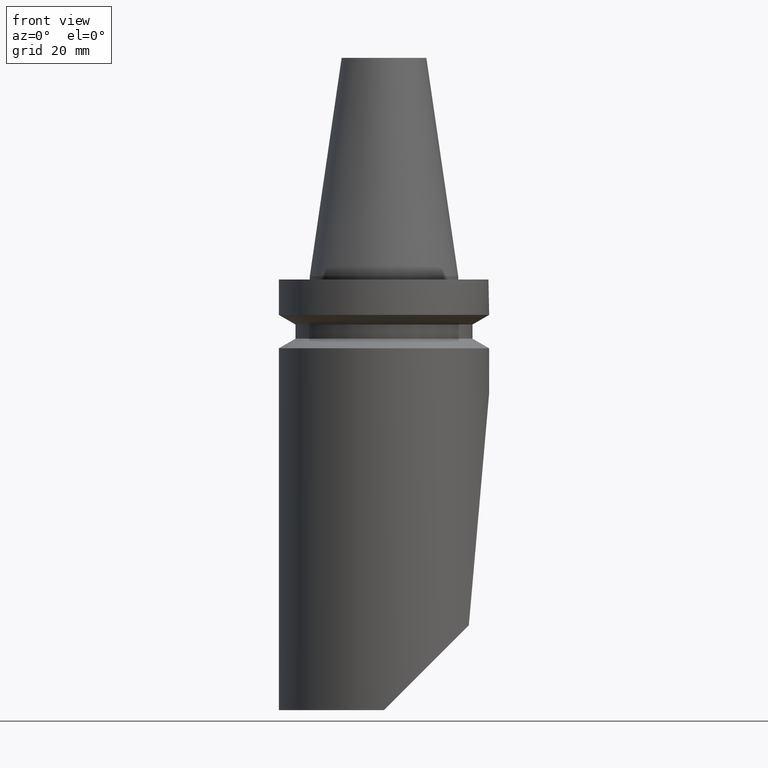
[diagram: clean part render]
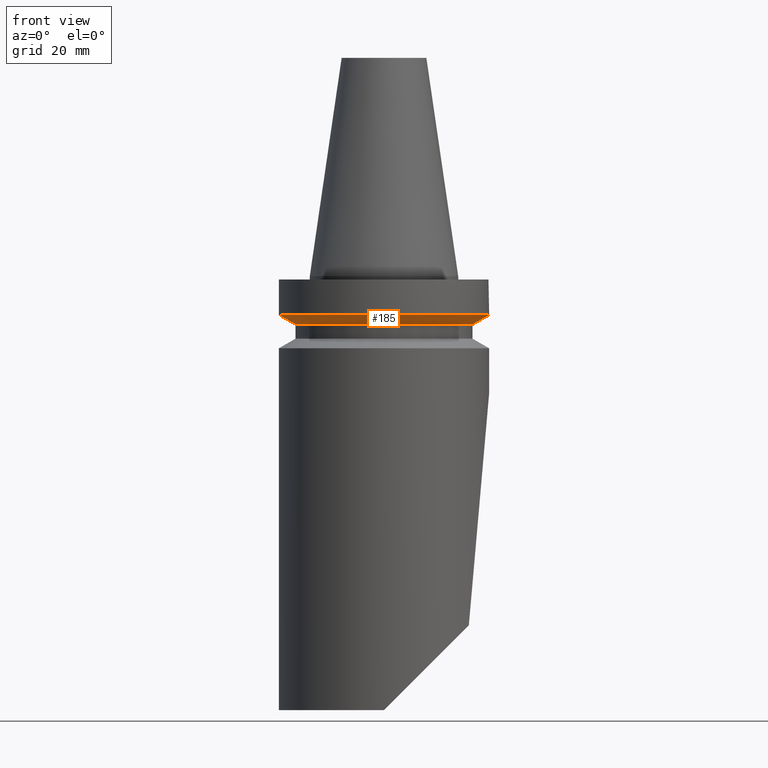
[diagram: same view with one face highlighted and labeled with its STEP entity id]
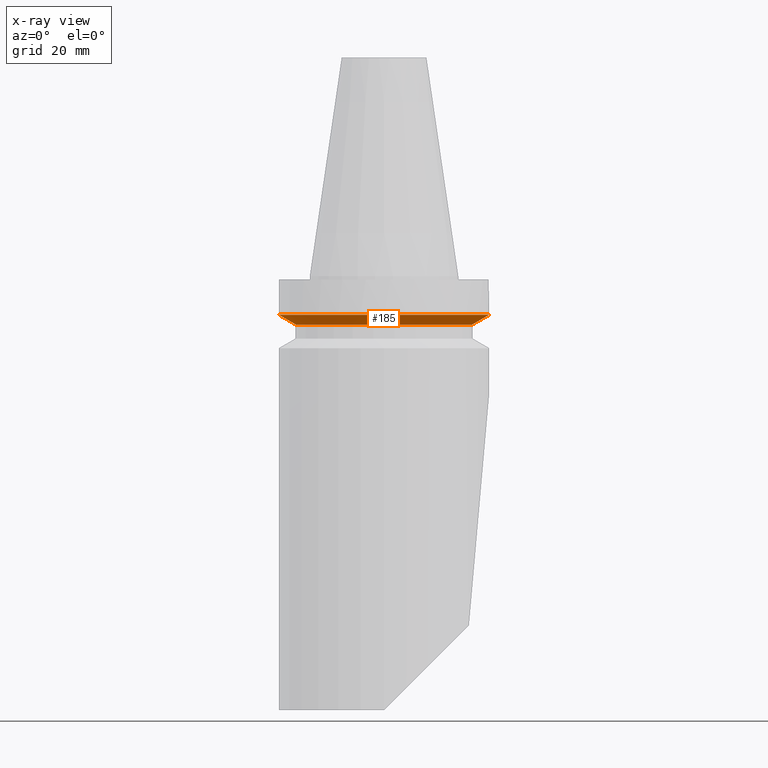
[diagram: x-ray of the same camera — body ghosted, the highlighted face saturated]
A machine part, front view. The second image highlights one B-rep face of the part: STEP entity #185.
The next image is the same camera in x-ray: the body ghosted, the highlighted face saturated — about 0% of this face is hidden behind the body in this view.
In plain terms, the highlighted conical surface has half-angle 60 deg.
Its self-contained STEP definition (entity closure, byte-faithful):
#185=ADVANCED_FACE('240[2]',(#387,#388),#389,.T.);
#197=EDGE_CURVE('240[2]',#407,#407,#408,.T.);
#208=EDGE_CURVE('240[2]',#421,#421,#422,.T.);
#387=FACE_BOUND('',#665,.T.);
#388=FACE_BOUND('',#666,.T.);
#389=CONICAL_SURFACE('',#667,29.0,1.04719755058882);
#407=VERTEX_POINT('',#690);
#408=CIRCLE('',#691,26.5);
#421=VERTEX_POINT('',#710);
#422=CIRCLE('',#711,31.5);
#665=EDGE_LOOP('',(#919));
#666=EDGE_LOOP('',(#920));
#667=AXIS2_PLACEMENT_3D('',#921,#922,#923);
#690=CARTESIAN_POINT('',(-26.5,-5.75502871015178E-015,-14.48675135));
#691=AXIS2_PLACEMENT_3D('',#942,#943,#944);
#710=CARTESIAN_POINT('',(31.5000000001728,5.07616098249752E-015,-11.6));
#711=AXIS2_PLACEMENT_3D('',#957,#958,#959);
#919=ORIENTED_EDGE('',*,*,#197,.T.);
#920=ORIENTED_EDGE('',*,*,#208,.F.);
#921=CARTESIAN_POINT('',(-1.59735282704652E-015,-7.98676413523261E-016,-13.043375675));
#922=DIRECTION('',(-0.0,-0.0,1.0));
#923=DIRECTION('',(-1.0,0.0,0.0));
#942=CARTESIAN_POINT('',(-1.77411536708211E-015,-8.87057683541056E-016,-14.48675135));
#943=DIRECTION('',(0.0,0.0,1.0));
#944=DIRECTION('',(-1.0,0.0,0.0));
#957=CARTESIAN_POINT('',(-1.42059028701093E-015,-7.10295143505465E-016,-11.6));
#958=DIRECTION('',(0.0,0.0,1.0));
#959=DIRECTION('',(-1.0,0.0,0.0));